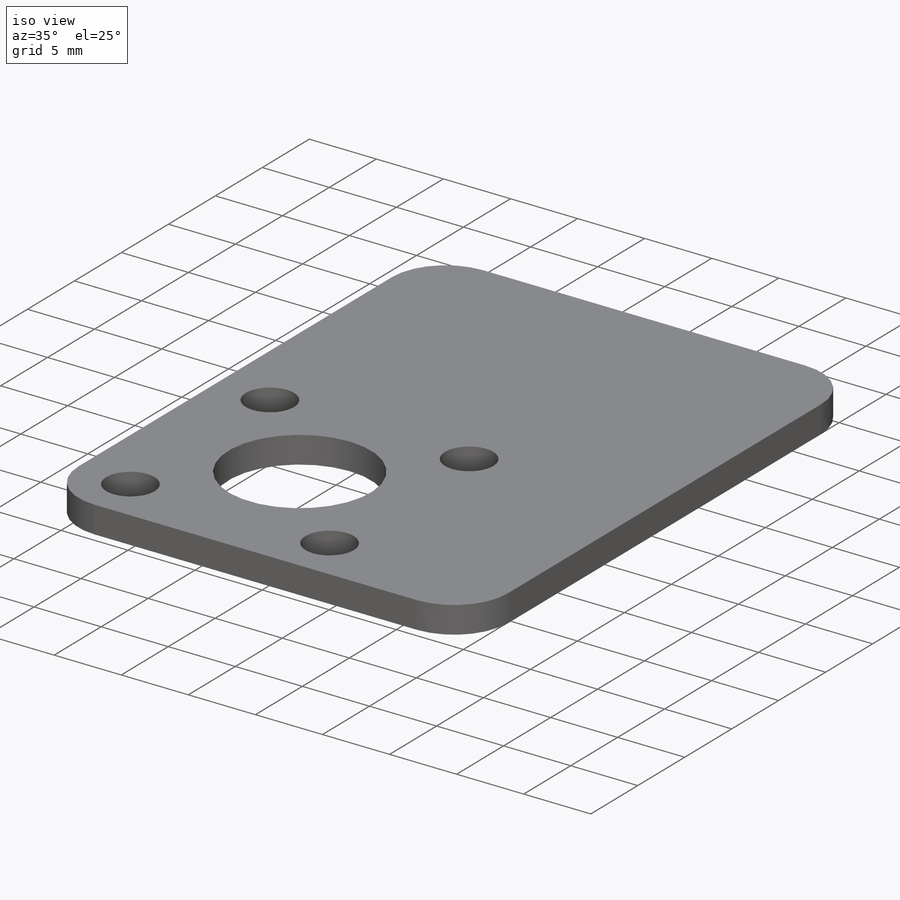
[diagram: iso view]
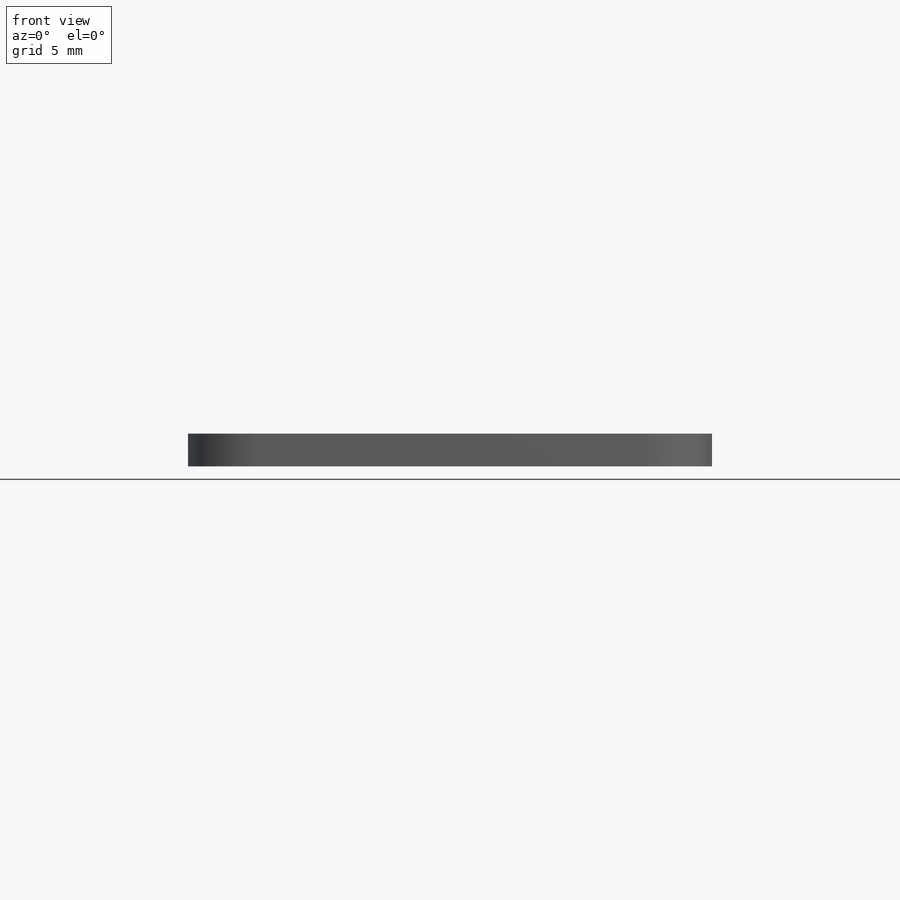
[diagram: front view]
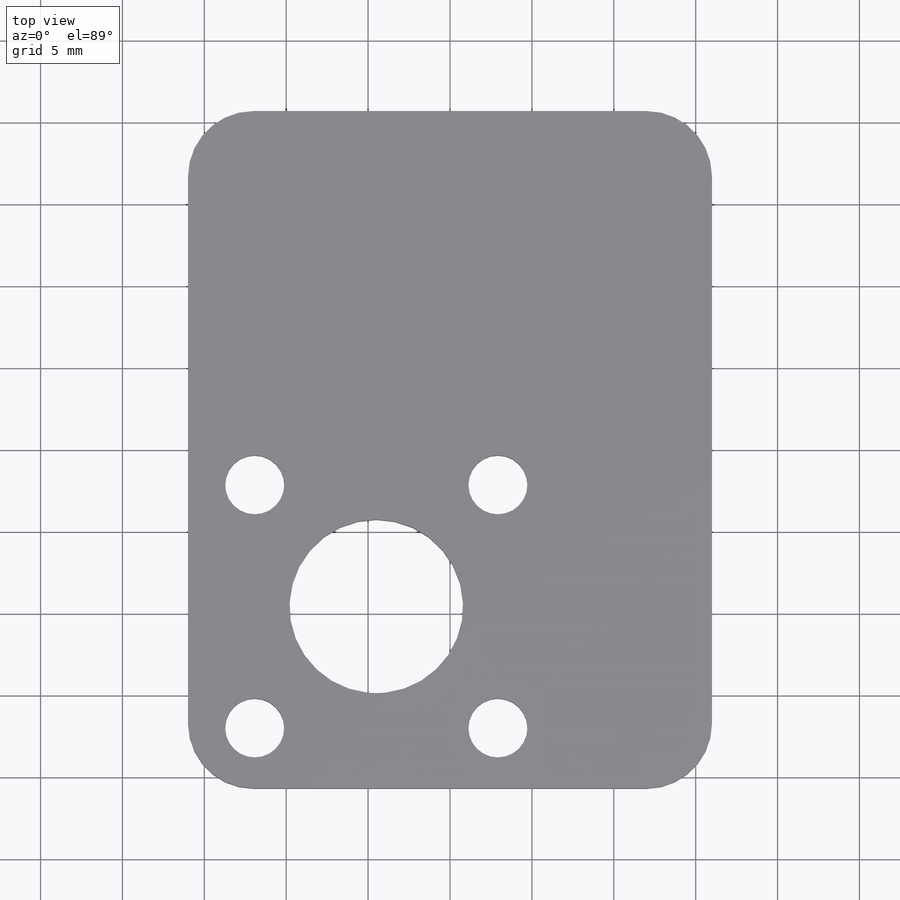
[diagram: top view]
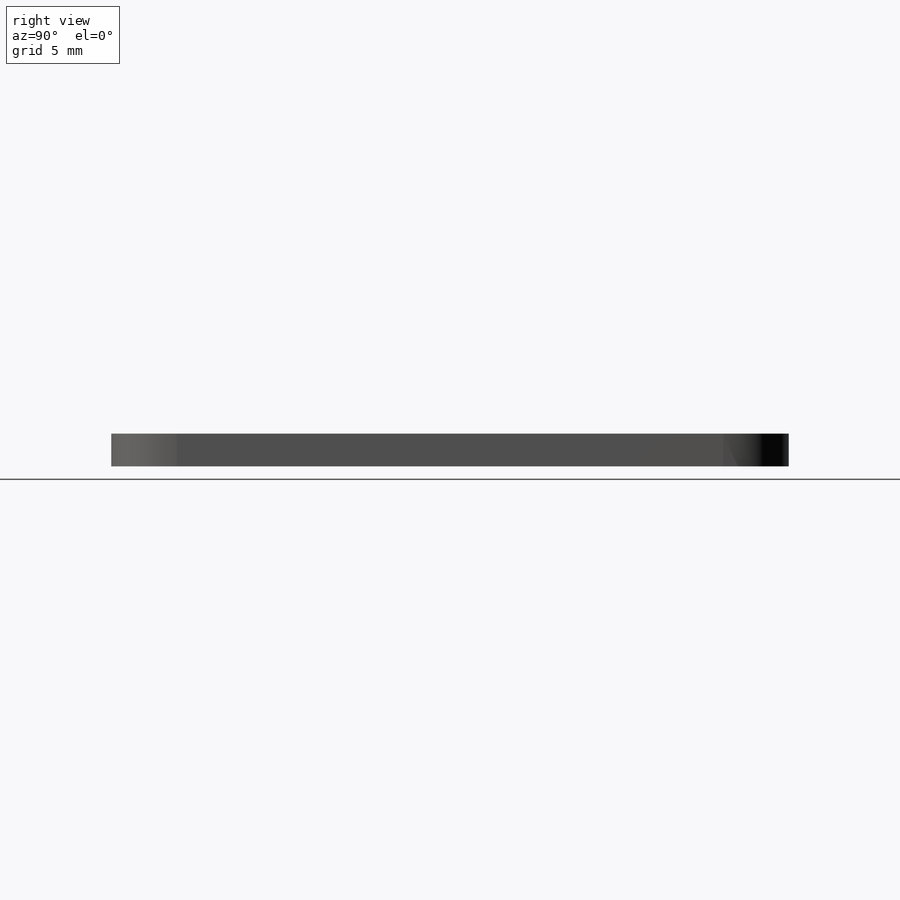
[diagram: right view]
SOLIDWORKS PART (.sldprt)
format: sldprt  version: not decoded by parser v0  size: 167,936 bytes
history: native  units: mm
features: plane x3, sketch x2, material x1, extrude x1, cut_extrude x1, pattern_circular x1, fillet x1 (+8 scaffold rows collapsed)
feature tree (18):
  scaffold x8  (default folders/planes/origin — collapsed)
  material  "Material <sin especificar>"
  plane  "Alzado"
  plane  "Planta"
  plane  "Vista lateral"
  sketch  "Croquis1"  dims[D3=10.6mm D1=41.37mm D2=32.0mm D4=11.12mm D5=11.5mm]
  extrude  "Saliente-Extruir1"  Depth=2mm
  sketch  "Croquis2"  dims[c1.D1=21.0mm c1.D2=3.6mm c1.D3=~8.444241mm c2.D3=45.0deg]
  cut_extrude  "Cortar-Extruir1"  [1 undecoded]
  pattern_circular  "MatrizC1"  Count=4 Angle=360deg
  fillet  "Redondeo1"  Radius=4mm
decode coverage: 5 of 6 modeling features carry decoded parameters
note: ~ marks probable driven/reference dimensions
note: 1 parameter value undecoded
note: suppression state not decoded; provenance and decode notes live in map.json
